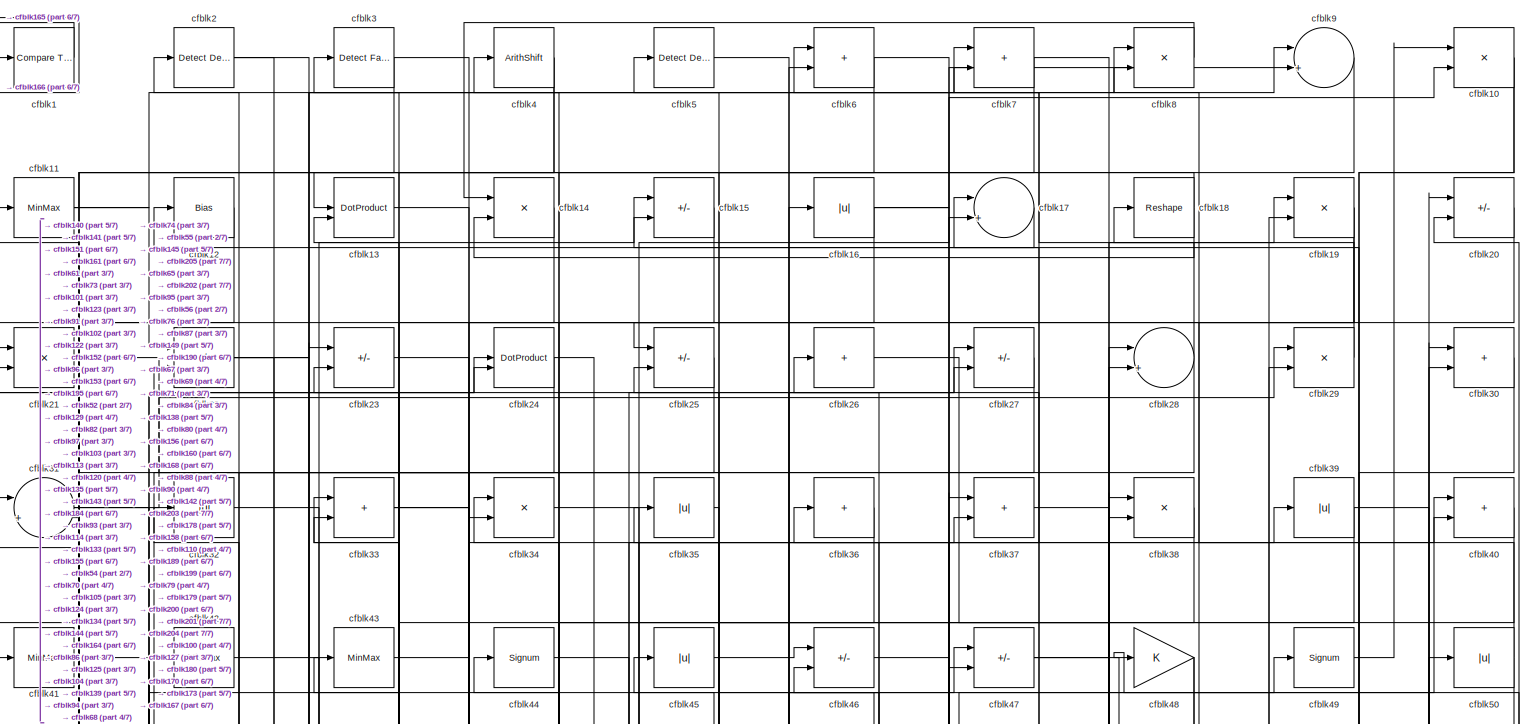
[diagram: root canvas - part 1/7, full width, top band]
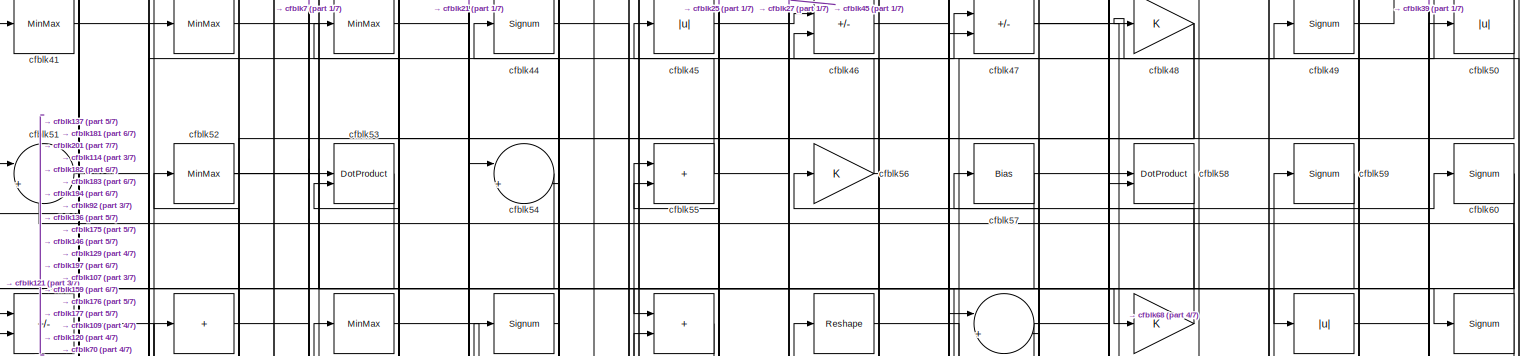
[diagram: root canvas - part 2/7, full width, top band]
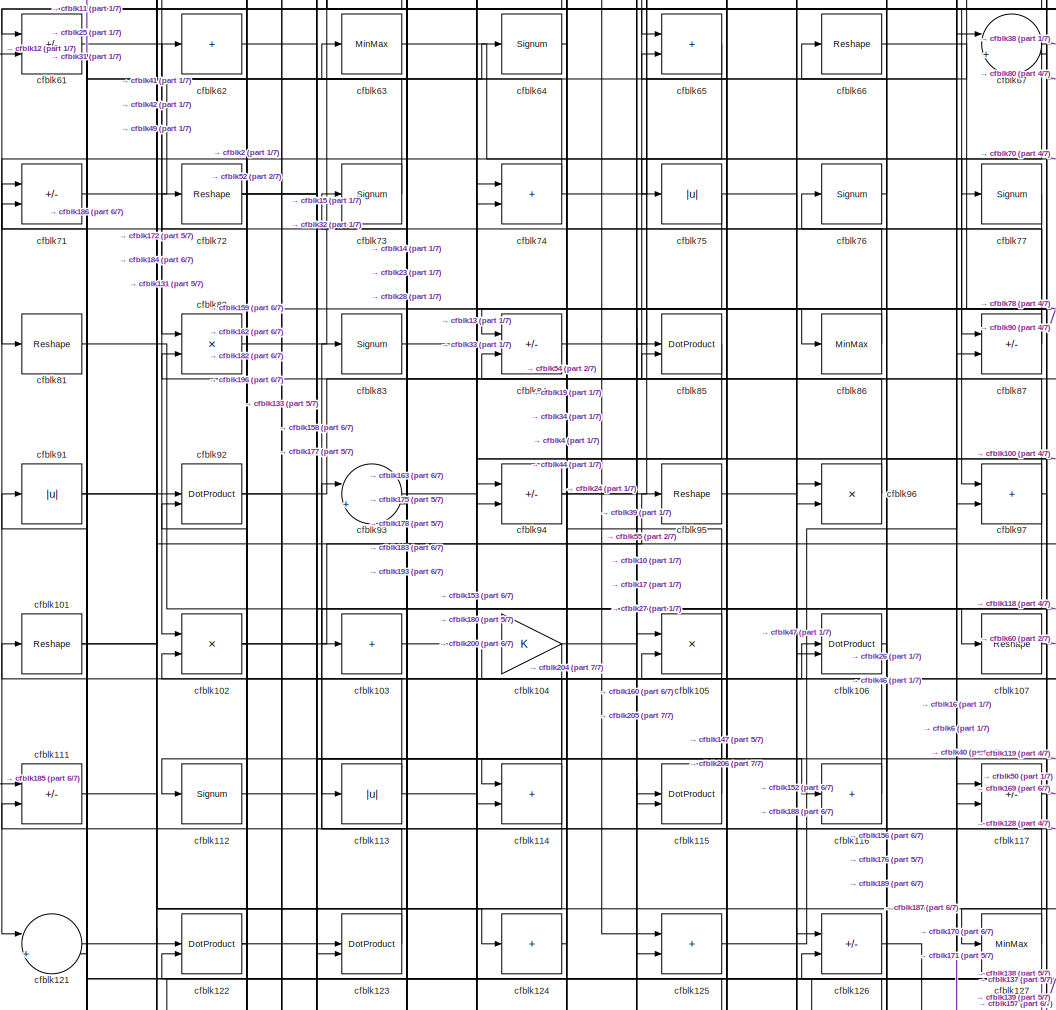
[diagram: root canvas - part 3/7, central region]
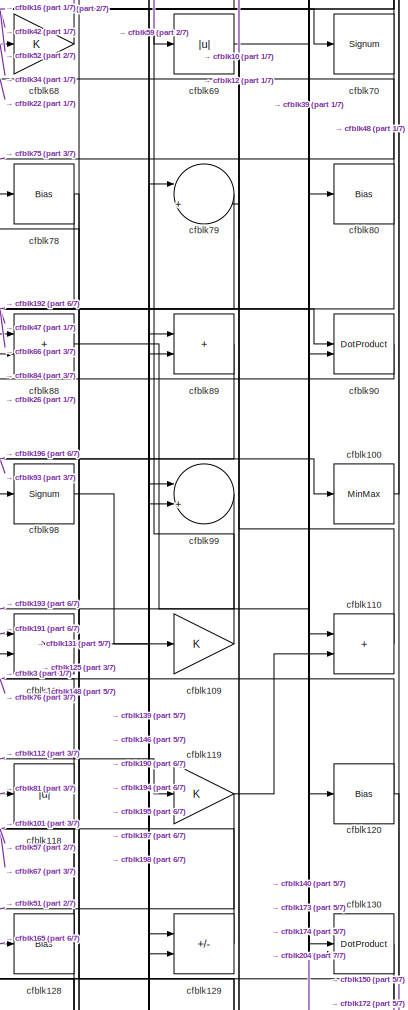
[diagram: root canvas - part 4/7, middle right region]
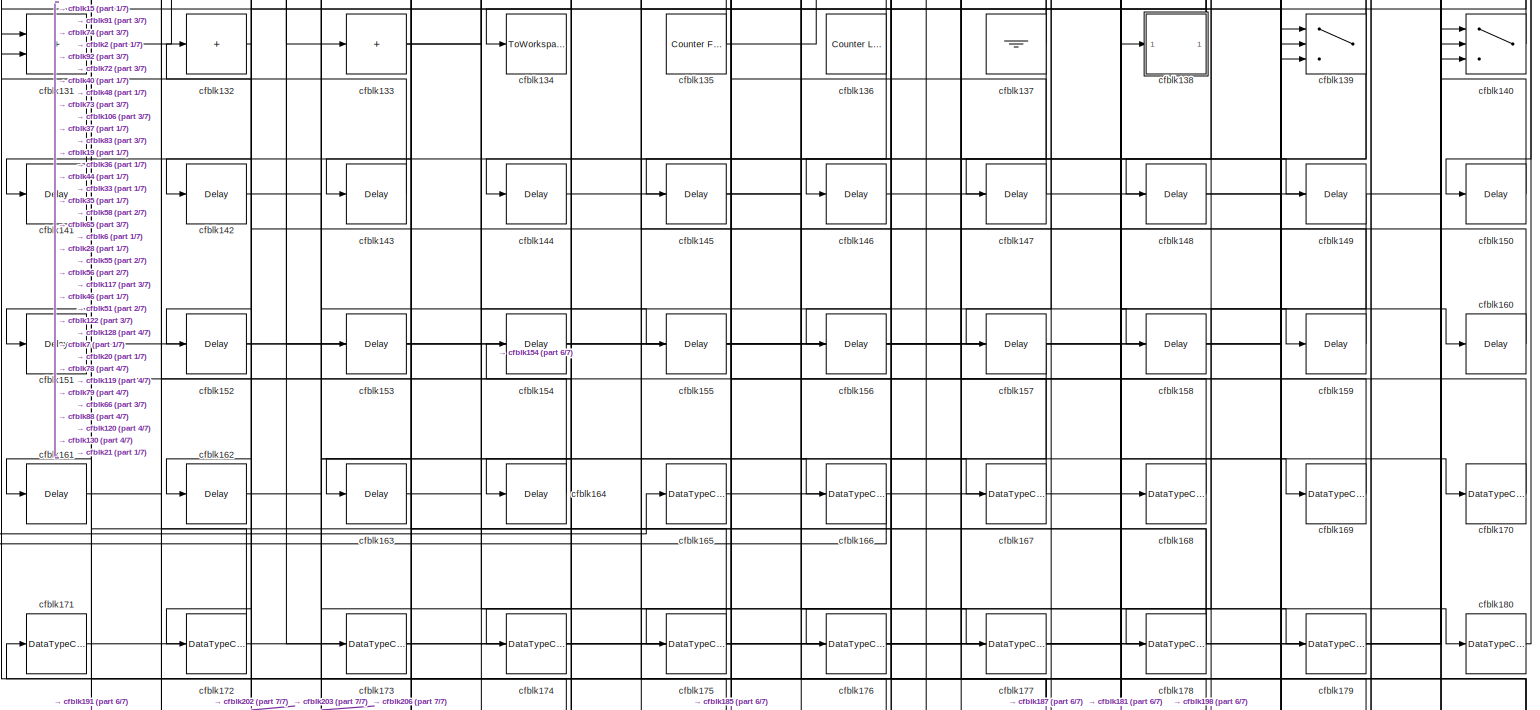
[diagram: root canvas - part 5/7, full width, bottom band]
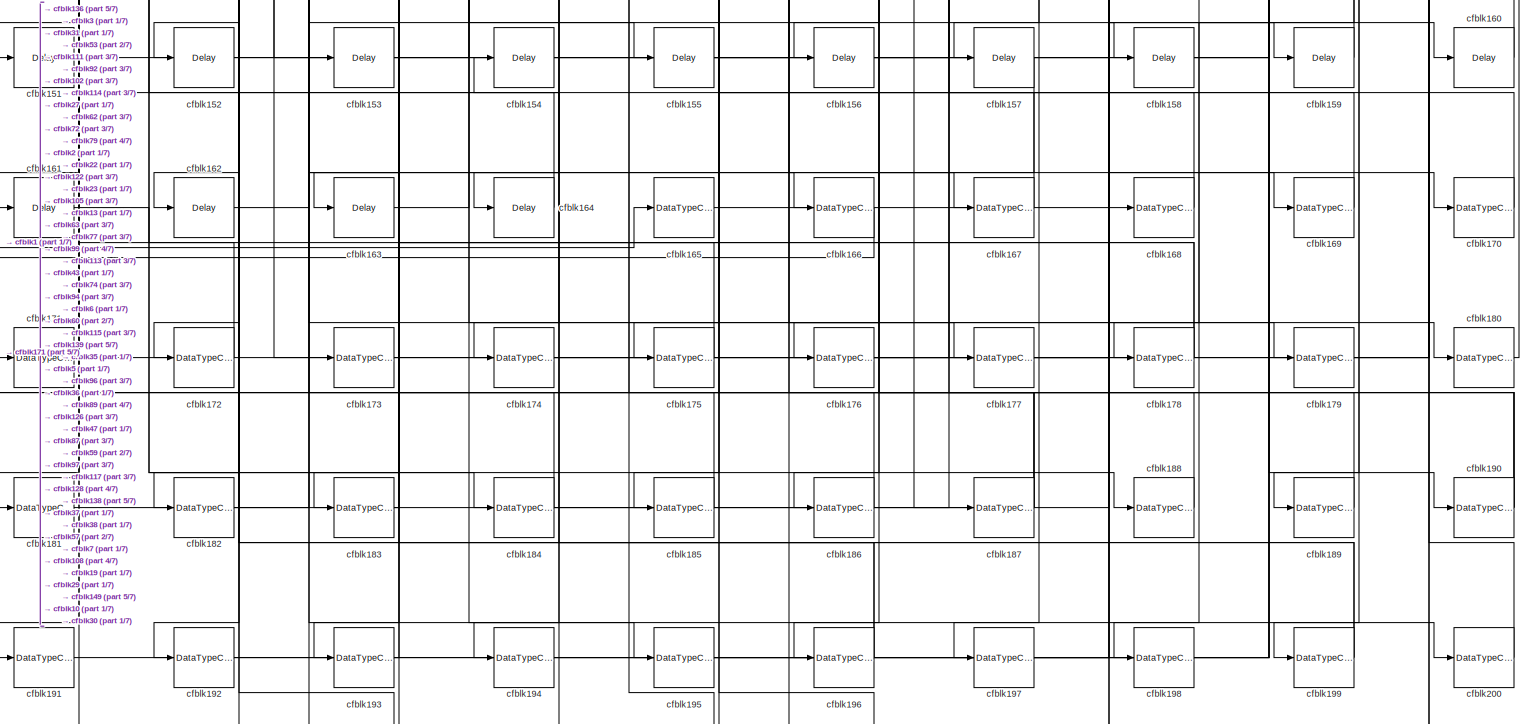
[diagram: root canvas - part 6/7, full width, bottom band]
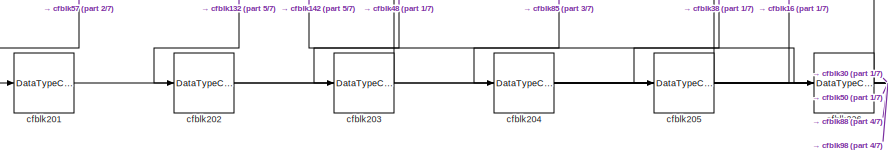
[diagram: root canvas - part 7/7, bottom left region]
MODEL slx_fe3451f4b6b8
KIND model
CONFIG AbsTol = auto
CONFIG EnableMultiTasking = off
CONFIG FixedStep = auto
CONFIG MaxStep = auto
CONFIG MinStep = auto
CONFIG RelTol = 1e-3
CONFIG SampleTimeConstraint = Unconstrained
CONFIG SolverName = VariableStepAuto
CONFIG StartTime = 0.0
CONFIG StopTime = 10.0
BLOCK [Reference] cfblk1  REF=hdlsllib/Logic and Bit
Operations/Compare
To Constant
  SourceBlock = hdlsllib/Logic and Bit\nOperations/Compare\nTo Constant
  SourceType = Compare To Constant
BLOCK [Product] cfblk10
  Inputs = */
  RndMeth = Zero
  SaturateOnIntegerOverflow = on
BLOCK [MinMax] cfblk100
BLOCK [Reshape] cfblk101
BLOCK [Product] cfblk102
  Inputs = */
  RndMeth = Zero
  SaturateOnIntegerOverflow = on
BLOCK [Sum] cfblk103
  IconShape = rectangular
  Inputs = +
BLOCK [Gain] cfblk104
BLOCK [Product] cfblk105
  Inputs = */
  RndMeth = Zero
  SaturateOnIntegerOverflow = on
BLOCK [DotProduct] cfblk106
  OutDataTypeStr = Inherit: Inherit via internal rule
BLOCK [Reshape] cfblk107
BLOCK [Product] cfblk108
  Inputs = */
  RndMeth = Zero
  SaturateOnIntegerOverflow = on
BLOCK [Gain] cfblk109
BLOCK [MinMax] cfblk11
BLOCK [Sum] cfblk110
  IconShape = rectangular
BLOCK [Sum] cfblk111
  IconShape = rectangular
  Inputs = +-
BLOCK [Signum] cfblk112
BLOCK [Abs] cfblk113
  SaturateOnIntegerOverflow = off
BLOCK [Sum] cfblk114
  IconShape = rectangular
BLOCK [DotProduct] cfblk115
  OutDataTypeStr = Inherit: Inherit via internal rule
BLOCK [Sum] cfblk116
  IconShape = rectangular
  Inputs = +
BLOCK [Sum] cfblk117
  IconShape = rectangular
  Inputs = +-
BLOCK [Abs] cfblk118
  SaturateOnIntegerOverflow = off
BLOCK [Gain] cfblk119
BLOCK [Bias] cfblk12
  Bias = 0.0
  SaturateOnIntegerOverflow = off
BLOCK [Bias] cfblk120
  Bias = 0.0
  SaturateOnIntegerOverflow = off
BLOCK [Sum] cfblk121
  Inputs = |++
BLOCK [DotProduct] cfblk122
  OutDataTypeStr = Inherit: Inherit via internal rule
BLOCK [DotProduct] cfblk123
  OutDataTypeStr = Inherit: Inherit via internal rule
BLOCK [Sum] cfblk124
  IconShape = rectangular
  Inputs = +
BLOCK [Sum] cfblk125
  IconShape = rectangular
BLOCK [Sum] cfblk126
  IconShape = rectangular
  Inputs = +-
BLOCK [MinMax] cfblk127
BLOCK [Bias] cfblk128
  Bias = 0.0
  SaturateOnIntegerOverflow = off
BLOCK [Sum] cfblk129
  IconShape = rectangular
  Inputs = +-
BLOCK [DotProduct] cfblk13
  OutDataTypeStr = Inherit: Inherit via internal rule
BLOCK [DotProduct] cfblk130
  OutDataTypeStr = Inherit: Inherit via internal rule
BLOCK [Sum] cfblk131
  IconShape = rectangular
BLOCK [Sum] cfblk132
  IconShape = rectangular
  Inputs = +
BLOCK [Sum] cfblk133
  IconShape = rectangular
  Inputs = +
BLOCK [ToWorkspace] cfblk134
  MaxDataPoints = inf
  SampleTime = -1
  SaveFormat = Timeseries
  VariableName = simout
BLOCK [Reference] cfblk135  REF=hdlsllib/Sources/Counter
Free-Running
  SourceBlock = hdlsllib/Sources/Counter\nFree-Running
  SourceType = Counter Free-Running
BLOCK [Reference] cfblk136  REF=hdlsllib/Sources/Counter
Limited
  SourceBlock = hdlsllib/Sources/Counter\nLimited
  SourceType = Counter Limited
BLOCK [Ground] cfblk137
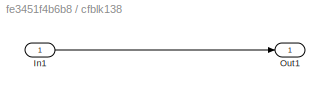
BLOCK [SubSystem] cfblk138
  LibrarySourceBlock = hdlsllib/Ports &\nSubsystems/Subsystem
BLOCK [Inport] cfblk138/In1
BLOCK [Outport] cfblk138/Out1
BLOCK [Switch] cfblk139
  InputSameDT = off
  SaturateOnIntegerOverflow = off
BLOCK [Product] cfblk14
  Inputs = */
  RndMeth = Zero
  SaturateOnIntegerOverflow = on
BLOCK [Switch] cfblk140
  InputSameDT = off
  SaturateOnIntegerOverflow = off
BLOCK [Delay] cfblk141
  InputPortMap = u0
  SampleTime = 1
BLOCK [Delay] cfblk142
  InputPortMap = u0
  SampleTime = 1
BLOCK [Delay] cfblk143
  InputPortMap = u0
  SampleTime = 1
BLOCK [Delay] cfblk144
  InputPortMap = u0
  SampleTime = 1
BLOCK [Delay] cfblk145
  InputPortMap = u0
  SampleTime = 1
BLOCK [Delay] cfblk146
  InputPortMap = u0
  SampleTime = 1
BLOCK [Delay] cfblk147
  InputPortMap = u0
  SampleTime = 1
BLOCK [Delay] cfblk148
  InputPortMap = u0
  SampleTime = 1
BLOCK [Delay] cfblk149
  InputPortMap = u0
  SampleTime = 1
BLOCK [Sum] cfblk15
  IconShape = rectangular
  Inputs = +-
BLOCK [Delay] cfblk150
  InputPortMap = u0
  SampleTime = 1
BLOCK [Delay] cfblk151
  InputPortMap = u0
  SampleTime = 1
BLOCK [Delay] cfblk152
  InputPortMap = u0
  SampleTime = 1
BLOCK [Delay] cfblk153
  InputPortMap = u0
  SampleTime = 1
BLOCK [Delay] cfblk154
  InputPortMap = u0
  SampleTime = 1
BLOCK [Delay] cfblk155
  InputPortMap = u0
  SampleTime = 1
BLOCK [Delay] cfblk156
  InputPortMap = u0
  SampleTime = 1
BLOCK [Delay] cfblk157
  InputPortMap = u0
  SampleTime = 1
BLOCK [Delay] cfblk158
  InputPortMap = u0
  SampleTime = 1
BLOCK [Delay] cfblk159
  InputPortMap = u0
  SampleTime = 1
BLOCK [Abs] cfblk16
  SaturateOnIntegerOverflow = off
BLOCK [Delay] cfblk160
  InputPortMap = u0
  SampleTime = 1
BLOCK [Delay] cfblk161
  InputPortMap = u0
  SampleTime = 1
BLOCK [Delay] cfblk162
  InputPortMap = u0
  SampleTime = 1
BLOCK [Delay] cfblk163
  InputPortMap = u0
  SampleTime = 1
BLOCK [Delay] cfblk164
  InputPortMap = u0
  SampleTime = 1
BLOCK [DataTypeConversion] cfblk165
  OutDataTypeStr = uint8
  RndMeth = Floor
  SaturateOnIntegerOverflow = off
BLOCK [DataTypeConversion] cfblk166
  OutDataTypeStr = uint8
  RndMeth = Floor
  SaturateOnIntegerOverflow = off
BLOCK [DataTypeConversion] cfblk167
  OutDataTypeStr = uint8
  RndMeth = Floor
  SaturateOnIntegerOverflow = off
BLOCK [DataTypeConversion] cfblk168
  OutDataTypeStr = uint8
  RndMeth = Floor
  SaturateOnIntegerOverflow = off
BLOCK [DataTypeConversion] cfblk169
  OutDataTypeStr = uint8
  RndMeth = Floor
  SaturateOnIntegerOverflow = off
BLOCK [Sum] cfblk17
  Inputs = |++
BLOCK [DataTypeConversion] cfblk170
  OutDataTypeStr = uint8
  RndMeth = Floor
  SaturateOnIntegerOverflow = off
BLOCK [DataTypeConversion] cfblk171
  OutDataTypeStr = uint8
  RndMeth = Floor
  SaturateOnIntegerOverflow = off
BLOCK [DataTypeConversion] cfblk172
  OutDataTypeStr = uint8
  RndMeth = Floor
  SaturateOnIntegerOverflow = off
BLOCK [DataTypeConversion] cfblk173
  OutDataTypeStr = uint8
  RndMeth = Floor
  SaturateOnIntegerOverflow = off
BLOCK [DataTypeConversion] cfblk174
  OutDataTypeStr = uint8
  RndMeth = Floor
  SaturateOnIntegerOverflow = off
BLOCK [DataTypeConversion] cfblk175
  OutDataTypeStr = uint8
  RndMeth = Floor
  SaturateOnIntegerOverflow = off
BLOCK [DataTypeConversion] cfblk176
  OutDataTypeStr = uint8
  RndMeth = Floor
  SaturateOnIntegerOverflow = off
BLOCK [DataTypeConversion] cfblk177
  OutDataTypeStr = uint8
  RndMeth = Floor
  SaturateOnIntegerOverflow = off
BLOCK [DataTypeConversion] cfblk178
  RndMeth = Floor
  SaturateOnIntegerOverflow = off
BLOCK [DataTypeConversion] cfblk179
  OutDataTypeStr = uint8
  RndMeth = Floor
  SaturateOnIntegerOverflow = off
BLOCK [Reshape] cfblk18
BLOCK [DataTypeConversion] cfblk180
  OutDataTypeStr = uint8
  RndMeth = Floor
  SaturateOnIntegerOverflow = off
BLOCK [DataTypeConversion] cfblk181
  OutDataTypeStr = uint8
  RndMeth = Floor
  SaturateOnIntegerOverflow = off
BLOCK [DataTypeConversion] cfblk182
  OutDataTypeStr = uint8
  RndMeth = Floor
  SaturateOnIntegerOverflow = off
BLOCK [DataTypeConversion] cfblk183
  OutDataTypeStr = uint8
  RndMeth = Floor
  SaturateOnIntegerOverflow = off
BLOCK [DataTypeConversion] cfblk184
  RndMeth = Floor
  SaturateOnIntegerOverflow = off
BLOCK [DataTypeConversion] cfblk185
  OutDataTypeStr = uint8
  RndMeth = Floor
  SaturateOnIntegerOverflow = off
BLOCK [DataTypeConversion] cfblk186
  OutDataTypeStr = uint8
  RndMeth = Floor
  SaturateOnIntegerOverflow = off
BLOCK [DataTypeConversion] cfblk187
  RndMeth = Floor
  SaturateOnIntegerOverflow = off
BLOCK [DataTypeConversion] cfblk188
  OutDataTypeStr = uint8
  RndMeth = Floor
  SaturateOnIntegerOverflow = off
BLOCK [DataTypeConversion] cfblk189
  OutDataTypeStr = uint8
  RndMeth = Floor
  SaturateOnIntegerOverflow = off
BLOCK [Product] cfblk19
  Inputs = */
  RndMeth = Zero
  SaturateOnIntegerOverflow = on
BLOCK [DataTypeConversion] cfblk190
  RndMeth = Floor
  SaturateOnIntegerOverflow = off
BLOCK [DataTypeConversion] cfblk191
  OutDataTypeStr = uint8
  RndMeth = Floor
  SaturateOnIntegerOverflow = off
BLOCK [DataTypeConversion] cfblk192
  OutDataTypeStr = uint8
  RndMeth = Floor
  SaturateOnIntegerOverflow = off
BLOCK [DataTypeConversion] cfblk193
  OutDataTypeStr = uint8
  RndMeth = Floor
  SaturateOnIntegerOverflow = off
BLOCK [DataTypeConversion] cfblk194
  OutDataTypeStr = uint8
  RndMeth = Floor
  SaturateOnIntegerOverflow = off
BLOCK [DataTypeConversion] cfblk195
  OutDataTypeStr = uint8
  RndMeth = Floor
  SaturateOnIntegerOverflow = off
BLOCK [DataTypeConversion] cfblk196
  RndMeth = Floor
  SaturateOnIntegerOverflow = off
BLOCK [DataTypeConversion] cfblk197
  OutDataTypeStr = uint8
  RndMeth = Floor
  SaturateOnIntegerOverflow = off
BLOCK [DataTypeConversion] cfblk198
  OutDataTypeStr = uint8
  RndMeth = Floor
  SaturateOnIntegerOverflow = off
BLOCK [DataTypeConversion] cfblk199
  RndMeth = Floor
  SaturateOnIntegerOverflow = off
BLOCK [Reference] cfblk2  REF=simulink/Logic and Bit
Operations/Detect
Decrease
  LibrarySourceBlock = hdlsllib/Logic and Bit\nOperations/Detect\nDecrease
  SourceBlock = simulink/Logic and Bit\nOperations/Detect\nDecrease
  SourceType = Detect Decrease
BLOCK [Sum] cfblk20
  IconShape = rectangular
  Inputs = +-
BLOCK [DataTypeConversion] cfblk200
  OutDataTypeStr = uint8
  RndMeth = Floor
  SaturateOnIntegerOverflow = off
BLOCK [DataTypeConversion] cfblk201
  OutDataTypeStr = uint8
  RndMeth = Floor
  SaturateOnIntegerOverflow = off
BLOCK [DataTypeConversion] cfblk202
  OutDataTypeStr = uint8
  RndMeth = Floor
  SaturateOnIntegerOverflow = off
BLOCK [DataTypeConversion] cfblk203
  OutDataTypeStr = uint8
  RndMeth = Floor
  SaturateOnIntegerOverflow = off
BLOCK [DataTypeConversion] cfblk204
  RndMeth = Floor
  SaturateOnIntegerOverflow = off
BLOCK [DataTypeConversion] cfblk205
  OutDataTypeStr = uint8
  RndMeth = Floor
  SaturateOnIntegerOverflow = off
BLOCK [DataTypeConversion] cfblk206
  OutDataTypeStr = uint8
  RndMeth = Floor
  SaturateOnIntegerOverflow = off
BLOCK [Product] cfblk21
  Inputs = */
  RndMeth = Zero
  SaturateOnIntegerOverflow = on
BLOCK [Sum] cfblk22
  IconShape = rectangular
  Inputs = +-
BLOCK [Sum] cfblk23
  IconShape = rectangular
  Inputs = +-
BLOCK [DotProduct] cfblk24
  OutDataTypeStr = Inherit: Inherit via internal rule
BLOCK [Sum] cfblk25
  IconShape = rectangular
  Inputs = +-
BLOCK [Sum] cfblk26
  IconShape = rectangular
  Inputs = +
BLOCK [Sum] cfblk27
  IconShape = rectangular
  Inputs = +-
BLOCK [Sum] cfblk28
  Inputs = |++
BLOCK [Product] cfblk29
  Inputs = */
  RndMeth = Zero
  SaturateOnIntegerOverflow = on
BLOCK [Reference] cfblk3  REF=hdlsllib/Logic and Bit
Operations/Detect Fall
Negative
  SourceBlock = hdlsllib/Logic and Bit\nOperations/Detect Fall\nNegative
  SourceType = Detect Fall Negative
BLOCK [Sum] cfblk30
  IconShape = rectangular
BLOCK [Sum] cfblk31
  Inputs = |++
BLOCK [Abs] cfblk32
  SaturateOnIntegerOverflow = off
BLOCK [Sum] cfblk33
  IconShape = rectangular
BLOCK [Product] cfblk34
  Inputs = */
  RndMeth = Zero
  SaturateOnIntegerOverflow = on
BLOCK [Abs] cfblk35
  SaturateOnIntegerOverflow = off
BLOCK [Sum] cfblk36
  IconShape = rectangular
  Inputs = +
BLOCK [Sum] cfblk37
  IconShape = rectangular
BLOCK [Product] cfblk38
  Inputs = */
  RndMeth = Zero
  SaturateOnIntegerOverflow = on
BLOCK [Abs] cfblk39
  SaturateOnIntegerOverflow = off
BLOCK [ArithShift] cfblk4
  BitShiftNumber = 8
  InputPortMap = u0
BLOCK [Sum] cfblk40
  IconShape = rectangular
BLOCK [MinMax] cfblk41
BLOCK [MinMax] cfblk42
BLOCK [MinMax] cfblk43
BLOCK [Signum] cfblk44
BLOCK [Abs] cfblk45
  SaturateOnIntegerOverflow = off
BLOCK [Sum] cfblk46
  IconShape = rectangular
  Inputs = +-
BLOCK [Sum] cfblk47
  IconShape = rectangular
  Inputs = +-
BLOCK [Gain] cfblk48
BLOCK [Signum] cfblk49
BLOCK [Reference] cfblk5  REF=simulink/Logic and Bit
Operations/Detect
Decrease
  LibrarySourceBlock = hdlsllib/Logic and Bit\nOperations/Detect\nDecrease
  SourceBlock = simulink/Logic and Bit\nOperations/Detect\nDecrease
  SourceType = Detect Decrease
BLOCK [Abs] cfblk50
  SaturateOnIntegerOverflow = off
BLOCK [Sum] cfblk51
  Inputs = |++
BLOCK [MinMax] cfblk52
BLOCK [DotProduct] cfblk53
  OutDataTypeStr = Inherit: Inherit via internal rule
BLOCK [Sum] cfblk54
  Inputs = |++
BLOCK [Sum] cfblk55
  IconShape = rectangular
BLOCK [Gain] cfblk56
BLOCK [Bias] cfblk57
  Bias = 0.0
  SaturateOnIntegerOverflow = off
BLOCK [DotProduct] cfblk58
  OutDataTypeStr = Inherit: Inherit via internal rule
BLOCK [Signum] cfblk59
BLOCK [Sum] cfblk6
  IconShape = rectangular
BLOCK [Signum] cfblk60
BLOCK [Sum] cfblk61
  IconShape = rectangular
  Inputs = +-
BLOCK [Sum] cfblk62
  IconShape = rectangular
  Inputs = +
BLOCK [MinMax] cfblk63
BLOCK [Signum] cfblk64
BLOCK [Sum] cfblk65
  IconShape = rectangular
BLOCK [Reshape] cfblk66
BLOCK [Sum] cfblk67
  Inputs = |++
BLOCK [Gain] cfblk68
BLOCK [Abs] cfblk69
  SaturateOnIntegerOverflow = off
BLOCK [Sum] cfblk7
  IconShape = rectangular
BLOCK [Signum] cfblk70
BLOCK [Sum] cfblk71
  IconShape = rectangular
  Inputs = +-
BLOCK [Reshape] cfblk72
BLOCK [Signum] cfblk73
BLOCK [Sum] cfblk74
  IconShape = rectangular
BLOCK [Abs] cfblk75
  SaturateOnIntegerOverflow = off
BLOCK [Signum] cfblk76
BLOCK [Signum] cfblk77
BLOCK [Bias] cfblk78
  Bias = 0.0
  SaturateOnIntegerOverflow = off
BLOCK [Sum] cfblk79
  Inputs = |++
BLOCK [Product] cfblk8
  Inputs = */
  RndMeth = Zero
  SaturateOnIntegerOverflow = on
BLOCK [Bias] cfblk80
  Bias = 0.0
  SaturateOnIntegerOverflow = off
BLOCK [Reshape] cfblk81
BLOCK [Product] cfblk82
  Inputs = */
  RndMeth = Zero
  SaturateOnIntegerOverflow = on
BLOCK [Signum] cfblk83
BLOCK [Sum] cfblk84
  IconShape = rectangular
  Inputs = +-
BLOCK [DotProduct] cfblk85
  OutDataTypeStr = Inherit: Inherit via internal rule
BLOCK [MinMax] cfblk86
BLOCK [Sum] cfblk87
  IconShape = rectangular
  Inputs = +-
BLOCK [Sum] cfblk88
  IconShape = rectangular
BLOCK [Sum] cfblk89
  IconShape = rectangular
BLOCK [Sum] cfblk9
  Inputs = |++
BLOCK [DotProduct] cfblk90
  OutDataTypeStr = Inherit: Inherit via internal rule
BLOCK [Abs] cfblk91
  SaturateOnIntegerOverflow = off
BLOCK [DotProduct] cfblk92
  OutDataTypeStr = Inherit: Inherit via internal rule
BLOCK [Sum] cfblk93
  Inputs = |++
BLOCK [Sum] cfblk94
  IconShape = rectangular
  Inputs = +-
BLOCK [Reshape] cfblk95
BLOCK [Product] cfblk96
  Inputs = */
  RndMeth = Zero
  SaturateOnIntegerOverflow = on
BLOCK [Sum] cfblk97
  IconShape = rectangular
BLOCK [Signum] cfblk98
BLOCK [Sum] cfblk99
  Inputs = |++
LINE cfblk100:1 -> cfblk48:1
NET cfblk101:1 -> cfblk24:2, cfblk42:1
NET cfblk102:1 -> cfblk116:1, cfblk162:1, cfblk28:1
LINE cfblk103:1 -> cfblk107:1
NET cfblk104:1 -> cfblk112:1, cfblk39:1
NET cfblk105:1 -> cfblk183:1, cfblk44:1
LINE cfblk106:1 -> cfblk176:1
LINE cfblk107:1 -> cfblk60:1
LINE cfblk108:1 -> cfblk190:1
LINE cfblk109:1 -> cfblk59:1
NET cfblk10:1 -> cfblk189:1, cfblk79:2
LINE cfblk110:1 -> cfblk12:1
LINE cfblk111:1 -> cfblk184:1
LINE cfblk112:1 -> cfblk119:1
NET cfblk113:1 -> cfblk200:1, cfblk82:2
NET cfblk114:1 -> cfblk182:1, cfblk52:1
LINE cfblk115:1 -> cfblk71:2
LINE cfblk116:1 -> cfblk104:1
LINE cfblk117:1 -> cfblk169:1
LINE cfblk118:1 -> cfblk76:1
NET cfblk119:1 -> cfblk110:2, cfblk139:2
NET cfblk11:1 -> cfblk22:1, cfblk9:1
NET cfblk120:1 -> cfblk150:1, cfblk3:1
LINE cfblk121:1 -> cfblk95:1
NET cfblk122:1 -> cfblk158:1, cfblk32:1
LINE cfblk123:1 -> cfblk83:1
LINE cfblk124:1 -> cfblk4:1
LINE cfblk125:1 -> cfblk17:2
LINE cfblk126:1 -> cfblk187:1
LINE cfblk127:1 -> cfblk93:1
NET cfblk128:1 -> cfblk101:1, cfblk131:2, cfblk67:2
LINE cfblk129:1 -> cfblk57:1
LINE cfblk12:1 -> cfblk61:2
LINE cfblk130:1 -> cfblk172:1
LINE cfblk131:1 -> cfblk74:1
LINE cfblk132:1 -> cfblk202:1
NET cfblk133:1 -> cfblk106:1, cfblk37:2
NET cfblk135:1 -> cfblk28:2, cfblk33:1
NET cfblk136:1 -> cfblk191:1, cfblk55:2
NET cfblk137:1 -> cfblk174:1, cfblk51:1, cfblk92:2
LINE cfblk138/In1:1 -> cfblk138/Out1:1
NET cfblk138:1 -> cfblk122:2, cfblk7:1
NET cfblk139:1 -> cfblk147:1, cfblk185:1, cfblk66:1, cfblk78:1
LINE cfblk13:1 -> cfblk114:2
LINE cfblk140:1 -> cfblk21:1
LINE cfblk141:1 -> cfblk131:1
LINE cfblk142:1 -> cfblk206:1
LINE cfblk143:1 -> cfblk21:2
LINE cfblk144:1 -> cfblk6:2
LINE cfblk145:1 -> cfblk179:1
LINE cfblk146:1 -> cfblk79:1
LINE cfblk147:1 -> cfblk65:2
LINE cfblk148:1 -> cfblk140:1
LINE cfblk149:1 -> cfblk198:1
LINE cfblk14:1 -> cfblk113:1
LINE cfblk150:1 -> cfblk140:2
LINE cfblk151:1 -> cfblk47:2
LINE cfblk152:1 -> cfblk96:1
LINE cfblk153:1 -> cfblk94:1
LINE cfblk154:1 -> cfblk139:1
LINE cfblk155:1 -> cfblk29:2
LINE cfblk156:1 -> cfblk38:1
LINE cfblk157:1 -> cfblk186:1
LINE cfblk158:1 -> cfblk19:2
LINE cfblk159:1 -> cfblk102:2
LINE cfblk15:1 -> cfblk141:1
LINE cfblk160:1 -> cfblk105:1
LINE cfblk161:1 -> cfblk188:1
LINE cfblk162:1 -> cfblk166:1
LINE cfblk163:1 -> cfblk74:2
LINE cfblk164:1 -> cfblk31:2
LINE cfblk165:1 -> cfblk128:1
LINE cfblk166:1 -> cfblk1:1
LINE cfblk167:1 -> cfblk35:1
LINE cfblk168:1 -> cfblk5:1
LINE cfblk169:1 -> cfblk92:1
NET cfblk16:1 -> cfblk65:1, cfblk69:1, cfblk9:2
LINE cfblk170:1 -> cfblk117:1
LINE cfblk171:1 -> cfblk117:2
LINE cfblk172:1 -> cfblk122:1
LINE cfblk173:1 -> cfblk130:1
LINE cfblk174:1 -> cfblk130:2
LINE cfblk175:1 -> cfblk73:1
LINE cfblk176:1 -> cfblk58:1
LINE cfblk177:1 -> cfblk58:2
NET cfblk178:1 -> cfblk33:2, cfblk91:1
LINE cfblk179:1 -> cfblk20:1
LINE cfblk17:1 -> cfblk15:2
LINE cfblk180:1 -> cfblk20:2
LINE cfblk181:1 -> cfblk138:1
LINE cfblk182:1 -> cfblk53:1
LINE cfblk183:1 -> cfblk53:2
NET cfblk184:1 -> cfblk13:2, cfblk87:2
LINE cfblk185:1 -> cfblk111:1
LINE cfblk186:1 -> cfblk111:2
NET cfblk187:1 -> cfblk105:2, cfblk115:1, cfblk171:1
LINE cfblk188:1 -> cfblk126:1
LINE cfblk189:1 -> cfblk126:2
NET cfblk18:1 -> cfblk13:1, cfblk14:2
NET cfblk190:1 -> cfblk23:1, cfblk36:1, cfblk37:1
LINE cfblk191:1 -> cfblk108:1
LINE cfblk192:1 -> cfblk108:2
LINE cfblk193:1 -> cfblk63:1
LINE cfblk194:1 -> cfblk99:1
LINE cfblk195:1 -> cfblk99:2
NET cfblk196:1 -> cfblk62:1, cfblk72:1
LINE cfblk197:1 -> cfblk89:1
LINE cfblk198:1 -> cfblk89:2
NET cfblk199:1 -> cfblk154:1, cfblk43:1
NET cfblk19:1 -> cfblk144:1, cfblk94:2
LINE cfblk1:1 -> cfblk165:1
LINE cfblk200:1 -> cfblk30:1
LINE cfblk201:1 -> cfblk30:2
LINE cfblk202:1 -> cfblk16:1
LINE cfblk203:1 -> cfblk132:1
NET cfblk204:1 -> cfblk50:1, cfblk88:2, cfblk98:1
LINE cfblk205:1 -> cfblk85:1
LINE cfblk206:1 -> cfblk85:2
LINE cfblk20:1 -> cfblk178:1
LINE cfblk21:1 -> cfblk54:1
NET cfblk22:1 -> cfblk153:1, cfblk195:1, cfblk8:2
LINE cfblk23:1 -> cfblk34:2
NET cfblk24:1 -> cfblk102:1, cfblk125:1
LINE cfblk25:1 -> cfblk61:1
LINE cfblk26:1 -> cfblk88:1
LINE cfblk27:1 -> cfblk152:1
NET cfblk28:1 -> cfblk18:1, cfblk93:2
LINE cfblk29:1 -> cfblk6:1
NET cfblk2:1 -> cfblk170:1, cfblk173:1
LINE cfblk30:1 -> cfblk199:1
NET cfblk31:1 -> cfblk124:1, cfblk29:1
LINE cfblk32:1 -> cfblk97:1
NET cfblk33:1 -> cfblk86:1, cfblk97:2
LINE cfblk34:1 -> cfblk68:1
LINE cfblk35:1 -> cfblk145:1
LINE cfblk36:1 -> cfblk134:1
LINE cfblk37:1 -> cfblk168:1
LINE cfblk38:1 -> cfblk205:1
NET cfblk39:1 -> cfblk54:2, cfblk80:1
NET cfblk3:1 -> cfblk151:1, cfblk70:1
LINE cfblk40:1 -> cfblk143:1
LINE cfblk41:1 -> cfblk123:2
LINE cfblk42:1 -> cfblk129:1
LINE cfblk43:1 -> cfblk155:1
LINE cfblk44:1 -> cfblk139:3
LINE cfblk45:1 -> cfblk46:1
LINE cfblk46:1 -> cfblk149:1
NET cfblk47:1 -> cfblk19:1, cfblk90:1
NET cfblk48:1 -> cfblk142:1, cfblk203:1
LINE cfblk49:1 -> cfblk10:1
NET cfblk4:1 -> cfblk103:1, cfblk41:1
NET cfblk50:1 -> cfblk127:1, cfblk8:1
LINE cfblk51:1 -> cfblk129:2
NET cfblk52:1 -> cfblk120:1, cfblk7:2
LINE cfblk53:1 -> cfblk181:1
LINE cfblk54:1 -> cfblk121:1
NET cfblk55:1 -> cfblk27:2, cfblk45:1
NET cfblk56:1 -> cfblk146:1, cfblk25:2
NET cfblk57:1 -> cfblk159:1, cfblk201:1
LINE cfblk58:1 -> cfblk175:1
LINE cfblk59:1 -> cfblk197:1
LINE cfblk5:1 -> cfblk167:1
NET cfblk60:1 -> cfblk121:2, cfblk194:1
LINE cfblk61:1 -> cfblk82:1
LINE cfblk62:1 -> cfblk123:1
LINE cfblk63:1 -> cfblk87:1
LINE cfblk64:1 -> cfblk114:1
LINE cfblk65:1 -> cfblk81:1
LINE cfblk66:1 -> cfblk90:2
NET cfblk67:1 -> cfblk38:2, cfblk77:1
LINE cfblk68:1 -> cfblk56:1
LINE cfblk69:1 -> cfblk110:1
NET cfblk6:1 -> cfblk164:1, cfblk67:1
NET cfblk70:1 -> cfblk51:2, cfblk75:1
LINE cfblk71:1 -> cfblk40:2
NET cfblk72:1 -> cfblk106:2, cfblk177:1, cfblk64:1
LINE cfblk73:1 -> cfblk11:1
NET cfblk74:1 -> cfblk17:1, cfblk31:1
NET cfblk75:1 -> cfblk115:2, cfblk96:2
LINE cfblk76:1 -> cfblk26:1
LINE cfblk77:1 -> cfblk163:1
NET cfblk78:1 -> cfblk125:2, cfblk148:1
LINE cfblk79:1 -> cfblk192:1
NET cfblk7:1 -> cfblk160:1, cfblk161:1
NET cfblk80:1 -> cfblk22:2, cfblk84:1
LINE cfblk81:1 -> cfblk118:1
LINE cfblk82:1 -> cfblk15:1
LINE cfblk83:1 -> cfblk180:1
LINE cfblk84:1 -> cfblk40:1
LINE cfblk85:1 -> cfblk204:1
LINE cfblk86:1 -> cfblk34:1
NET cfblk87:1 -> cfblk46:2, cfblk71:1
LINE cfblk88:1 -> cfblk140:3
LINE cfblk89:1 -> cfblk196:1
LINE cfblk8:1 -> cfblk14:1
LINE cfblk90:1 -> cfblk84:2
NET cfblk91:1 -> cfblk24:1, cfblk49:1
NET cfblk92:1 -> cfblk133:1, cfblk55:1
LINE cfblk93:1 -> cfblk100:1
NET cfblk94:1 -> cfblk10:2, cfblk27:1
LINE cfblk95:1 -> cfblk47:1
LINE cfblk96:1 -> cfblk2:1
NET cfblk97:1 -> cfblk156:1, cfblk157:1, cfblk23:2
LINE cfblk98:1 -> cfblk109:1
LINE cfblk99:1 -> cfblk193:1
LINE cfblk9:1 -> cfblk25:1
note: NET lines group one-source signal fan-out (src -> all destinations, sorted); 1:1 wires keep LINE
